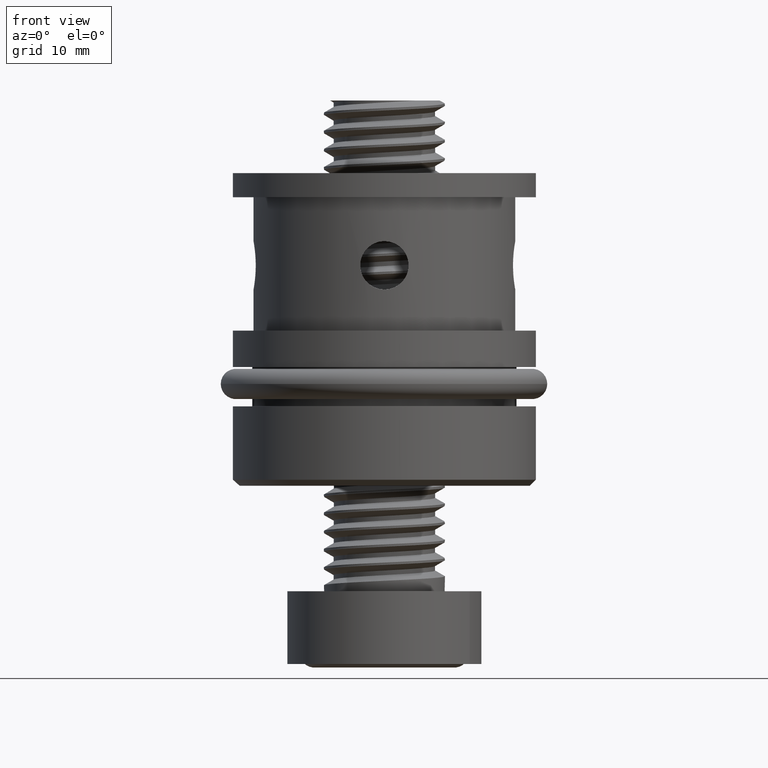
[diagram: clean part render]
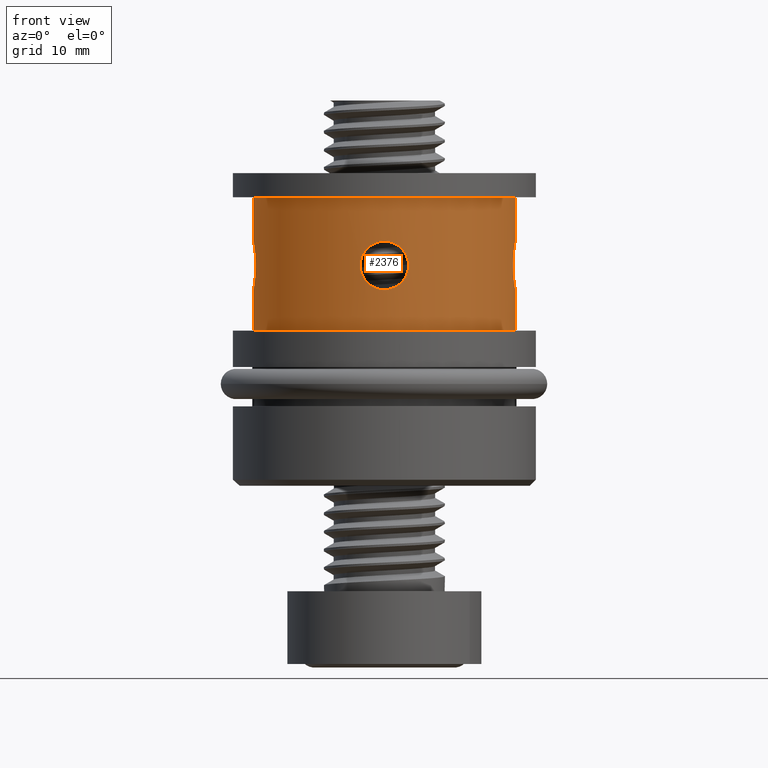
[diagram: same view with one face highlighted and labeled with its STEP entity id]
A machine part, front view. The second image highlights one B-rep face of the part: STEP entity #2376.
In plain terms, the highlighted cylindrical surface (bore or boss wall) has radius 10.8 mm, axis along (-0, -0, -1).
Its self-contained STEP definition (entity closure, byte-faithful):
#3 = CARTESIAN_POINT ( 'NONE',  ( -1.589598264491419943, -10.68262882605799291, 16.95927905251456380 ) ) ;
#10 = CARTESIAN_POINT ( 'NONE',  ( -10.66005000428028993, 1.734564839965093475, 17.17587496293500848 ) ) ;
#34 = VERTEX_POINT ( 'NONE', #5374 ) ;
#36 = CARTESIAN_POINT ( 'NONE',  ( -1.999800858941863213, -10.61323685618143386, 17.91428464412832255 ) ) ;
#49 = EDGE_CURVE ( 'NONE', #1117, #1117, #2705, .T. ) ;
#68 = CARTESIAN_POINT ( 'NONE',  ( -1.797746937189588223, -10.64944541873104100, 19.06612907610264784 ) ) ;
#133 = CARTESIAN_POINT ( 'NONE',  ( 1.747347022977987274, -10.65819150590202113, 19.18727070620046149 ) ) ;
#152 = CARTESIAN_POINT ( 'NONE',  ( -10.80000000000000071, 1.219727444046192488E-16, 20.17999999999999261 ) ) ;
#194 = CARTESIAN_POINT ( 'NONE',  ( -2.000076272813782641, 10.61318495594069056, 18.05042741847904253 ) ) ;
#197 = VERTEX_POINT ( 'NONE', #3669 ) ;
#215 = CARTESIAN_POINT ( 'NONE',  ( -10.78830205597930103, -0.5185978336214221995, 20.11599831442861941 ) ) ;
#224 = CARTESIAN_POINT ( 'NONE',  ( -1.935878953489700294, 10.62511406820406634, 17.66086318466737737 ) ) ;
#239 = ORIENTED_EDGE ( 'NONE', *, *, #2530, .T. ) ;
#246 = CARTESIAN_POINT ( 'NONE',  ( -10.76415098396516257, -0.8875499496336692884, 16.38294959545195084 ) ) ;
#255 = CARTESIAN_POINT ( 'NONE',  ( -1.999846424187794236, 10.61322826966316590, 18.44266115716260401 ) ) ;
#296 = CARTESIAN_POINT ( 'NONE',  ( 10.64946664383411346, -1.797625381050093285, 19.06643332542306979 ) ) ;
#310 = CARTESIAN_POINT ( 'NONE',  ( -0.6457459867269909060, 10.78135907199638766, 16.28259461627015625 ) ) ;
#332 = EDGE_LOOP ( 'NONE', ( #489 ) ) ;
#342 = FACE_OUTER_BOUND ( 'NONE', #4947, .T. ) ;
#373 = DIRECTION ( 'NONE',  ( -1.000000000000000000, 0.0000000000000000000, 0.0000000000000000000 ) ) ;
#389 = CARTESIAN_POINT ( 'NONE',  ( 10.80000000000000071, 1.219727444046192488E-16, 16.17999999999999261 ) ) ;
#420 = CARTESIAN_POINT ( 'NONE',  ( 10.68238903417437413, 1.591214673877152874, 16.96133060017529104 ) ) ;
#452 = CARTESIAN_POINT ( 'NONE',  ( 10.66005000428028993, 1.734564839965093475, 19.18412503706496963 ) ) ;
#479 = CARTESIAN_POINT ( 'NONE',  ( 0.8875499496336682892, -10.76415098396516434, 16.38294959545195795 ) ) ;
#489 = ORIENTED_EDGE ( 'NONE', *, *, #4073, .T. ) ;
#510 = CARTESIAN_POINT ( 'NONE',  ( -1.947469603804373506, -10.62345735533934921, 17.65431158467173134 ) ) ;
#518 = CARTESIAN_POINT ( 'NONE',  ( -10.69499868222685990, 1.505212175646270634, 16.85662155793979622 ) ) ;
#545 = CARTESIAN_POINT ( 'NONE',  ( -1.736424358206651197, -10.65974812385533887, 19.18097437162881036 ) ) ;
#553 = CARTESIAN_POINT ( 'NONE',  ( -10.64944541873103745, 1.797746937189589556, 19.06612907610264429 ) ) ;
#578 = CARTESIAN_POINT ( 'NONE',  ( 2.000076272813783973, -10.61318495594069233, 18.05042741847904608 ) ) ;
#597 = EDGE_CURVE ( 'NONE', #34, #34, #5169, .T. ) ;
#627 = CARTESIAN_POINT ( 'NONE',  ( -10.61318495594068878, -2.000076272813786193, 18.05042741847904253 ) ) ;
#643 = CARTESIAN_POINT ( 'NONE',  ( 1.355252715606880543E-17, -10.80000000000000426, 20.17999999999999616 ) ) ;
#659 = CARTESIAN_POINT ( 'NONE',  ( -10.64946664383411346, -1.797625381050093285, 17.29356667457691188 ) ) ;
#684 = CARTESIAN_POINT ( 'NONE',  ( 10.75372372631463058, -1.004613211255555250, 19.91427001587771173 ) ) ;
#690 = CARTESIAN_POINT ( 'NONE',  ( -10.62352939510842909, -1.947021054446781640, 18.70623655120161999 ) ) ;
#716 = CARTESIAN_POINT ( 'NONE',  ( 10.75395554293048406, 1.002218578439326269, 19.91572323043770254 ) ) ;
#721 = CARTESIAN_POINT ( 'NONE',  ( -10.68267020654017863, -1.598441504359452203, 19.40993401976869848 ) ) ;
#744 = CARTESIAN_POINT ( 'NONE',  ( 10.68248769205196425, -1.590537940317018117, 19.39947530450871582 ) ) ;
#759 = CARTESIAN_POINT ( 'NONE',  ( -1.002603679390976499, 10.75391577962356493, 19.91546654801592098 ) ) ;
#787 = CARTESIAN_POINT ( 'NONE',  ( -1.747347022977988606, 10.65819150590202469, 19.18727070620046149 ) ) ;
#801 = CARTESIAN_POINT ( 'NONE',  ( 10.65974812385533532, 1.736424358206652974, 17.17902562837117841 ) ) ;
#832 = CARTESIAN_POINT ( 'NONE',  ( 10.62345735533935454, 1.947469603804376614, 18.70568841532826454 ) ) ;
#850 = CARTESIAN_POINT ( 'NONE',  ( 1.507179599541713877, 10.69471842031598463, 19.50110749759831563 ) ) ;
#864 = CARTESIAN_POINT ( 'NONE',  ( 10.64971775269037657, 1.796143868860575310, 19.06944575118032148 ) ) ;
#881 = CARTESIAN_POINT ( 'NONE',  ( 1.231491522672951922, 10.73116015955719504, 19.77721322669376391 ) ) ;
#897 = CARTESIAN_POINT ( 'NONE',  ( 10.61562815664181691, 1.987235619614812210, 17.91932436437407716 ) ) ;
#915 = FACE_BOUND ( 'NONE', #332, .T. ) ;
#944 = AXIS2_PLACEMENT_3D ( 'NONE', #5265, #4735, #373 ) ;
#957 = CARTESIAN_POINT ( 'NONE',  ( 1.219790793298825893, -10.73145046830802229, 19.77033603297983788 ) ) ;
#985 = CARTESIAN_POINT ( 'NONE',  ( -1.796143868860571757, -10.64971775269037302, 17.29055424881967085 ) ) ;
#1019 = CARTESIAN_POINT ( 'NONE',  ( 1.355252715606880543E-17, -10.80000000000000426, 20.17999999999999616 ) ) ;
#1026 = CARTESIAN_POINT ( 'NONE',  ( -10.69471842031598463, 1.507179599541714765, 19.50110749759832274 ) ) ;
#1053 = CARTESIAN_POINT ( 'NONE',  ( -1.008904288144430339, -10.75547539496108129, 19.92641734741187776 ) ) ;
#1060 = CARTESIAN_POINT ( 'NONE',  ( -10.73141212968002023, 1.220162120888325763, 16.58991144573662524 ) ) ;
#1086 = CARTESIAN_POINT ( 'NONE',  ( -0.1324355693000434653, -10.80000000000000959, 20.17999999999999616 ) ) ;
#1096 = ORIENTED_EDGE ( 'NONE', *, *, #2332, .T. ) ;
#1103 = CARTESIAN_POINT ( 'NONE',  ( -10.78135907199638588, -0.6457459867269924603, 16.28259461627015270 ) ) ;
#1117 = VERTEX_POINT ( 'NONE', #4367 ) ;
#1147 = CARTESIAN_POINT ( 'NONE',  ( 0.0000000000000000000, 0.0000000000000000000, 23.79999999999999716 ) ) ;
#1167 = CARTESIAN_POINT ( 'NONE',  ( -10.75391577962356848, -1.002603679390976499, 19.91546654801593164 ) ) ;
#1190 = CARTESIAN_POINT ( 'NONE',  ( 10.63202895569500583, -1.898040329917645153, 18.82394406358178074 ) ) ;
#1205 = CARTESIAN_POINT ( 'NONE',  ( 1.999800858941863657, 10.61323685618145163, 17.91428464412833677 ) ) ;
#1221 = EDGE_LOOP ( 'NONE', ( #239 ) ) ;
#1234 = CARTESIAN_POINT ( 'NONE',  ( -1.220911044758802078, 10.73131855397636869, 16.59056097537915520 ) ) ;
#1249 = CARTESIAN_POINT ( 'NONE',  ( 10.80000000000000071, 1.219727444046192488E-16, 16.17999999999999261 ) ) ;
#1400 = CARTESIAN_POINT ( 'NONE',  ( 10.69471842031598463, 1.507179599541714765, 16.85889250240166959 ) ) ;
#1426 = CARTESIAN_POINT ( 'NONE',  ( 1.220911044758802300, -10.73131855397636691, 16.59056097537915875 ) ) ;
#1458 = CARTESIAN_POINT ( 'NONE',  ( -0.2605371677251699936, -10.80001927726813804, 16.17989590274407163 ) ) ;
#1463 = CARTESIAN_POINT ( 'NONE',  ( -10.61318072528518108, 2.000098723224239983, 18.31060294330307769 ) ) ;
#1488 = CARTESIAN_POINT ( 'NONE',  ( -1.505212175646267081, -10.69499868222685990, 16.85662155793978201 ) ) ;
#1522 = CARTESIAN_POINT ( 'NONE',  ( -1.591214673877152208, -10.68238903417436880, 19.39866939982469773 ) ) ;
#1552 = VERTEX_POINT ( 'NONE', #5409 ) ;
#1554 = CARTESIAN_POINT ( 'NONE',  ( 1.935878953489701182, -10.62511406820406279, 17.66086318466737737 ) ) ;
#1592 = CARTESIAN_POINT ( 'NONE',  ( -10.79999031715724556, -0.1314653969383476062, 16.18005228735487933 ) ) ;
#1595 = CARTESIAN_POINT ( 'NONE',  ( 10.79999031715724556, -0.1314653969383476062, 20.17994771264510590 ) ) ;
#1625 = B_SPLINE_CURVE_WITH_KNOTS ( 'NONE', 3,
 ( #152, #3568, #5490, #215, #4953, #5013, #1167, #3507, #2177, #721, #6019, #690, #1700, #627, #2083, #2147, #5426, #659, #3540, #5518, #3596, #4072, #5990, #4579, #246, #1103, #5455, #3064, #1592, #5890, #5786, #2009, #4911, #1060, #4377, #518, #3933, #10, #3430, #2924, #2420, #1463, #5386, #1976, #3899, #553, #3397, #3463, #1026, #5349, #2955, #2989, #4846, #5919, #4880, #5818 ),
 .UNSPECIFIED., .T., .F.,
 ( 4, 2, 2, 2, 2, 2, 2, 2, 2, 2, 2, 2, 2, 2, 2, 2, 2, 2, 2, 2, 2, 2, 2, 2, 2, 2, 2, 4 ),
 ( 0.0000000000000000000, 0.0003916033512440273237, 0.0007832067024880546473, 0.001174810053732082242, 0.001566413404976109945, 0.002349620107464172290, 0.003132826809952234635, 0.003524430161196265808, 0.003916033512440296981, 0.004307636863684329021, 0.004699240214928360193, 0.005090843566172392233, 0.005482446917416423406, 0.005874050268660455446, 0.006265653619904485751, 0.007048860322392548963, 0.007440463673636581003, 0.007832067024880611308, 0.008223670376124642481, 0.008615273727368675388, 0.009398480429856727325, 0.009790083781100760232, 0.01018168713234479140, 0.01057329048358882258, 0.01096489383483285375, 0.01174810053732091956, 0.01213970388856494900, 0.01253130723980898018 ),
 .UNSPECIFIED. ) ;
#1630 = CARTESIAN_POINT ( 'NONE',  ( 10.61318495594068878, -2.000076272813786193, 18.30957258152094269 ) ) ;
#1647 = CARTESIAN_POINT ( 'NONE',  ( -0.8878409822580523025, 10.76412846501430565, 19.97691732339053061 ) ) ;
#1663 = CARTESIAN_POINT ( 'NONE',  ( 10.80000000000000071, -0.1324355693000444090, 16.17999999999998906 ) ) ;
#1678 = CARTESIAN_POINT ( 'NONE',  ( 1.589598264491423718, 10.68262882605799824, 16.95927905251457446 ) ) ;
#1700 = CARTESIAN_POINT ( 'NONE',  ( -10.61322826966315347, -1.999846424187795568, 18.44266115716260046 ) ) ;
#1710 = CARTESIAN_POINT ( 'NONE',  ( -1.219790793298826337, 10.73145046830802407, 19.77033603297984143 ) ) ;
#1738 = CARTESIAN_POINT ( 'NONE',  ( 2.000098723224239095, 10.61318072528519174, 18.31060294330308125 ) ) ;
#1938 = CARTESIAN_POINT ( 'NONE',  ( -1.734564839965090366, -10.66005000428029170, 17.17587496293501559 ) ) ;
#1969 = CARTESIAN_POINT ( 'NONE',  ( -1.987235619614809989, -10.61562815664182402, 18.44067563562591161 ) ) ;
#1976 = CARTESIAN_POINT ( 'NONE',  ( -10.62500795775757290, 1.936458743567937457, 18.69689914812672527 ) ) ;
#2009 = CARTESIAN_POINT ( 'NONE',  ( -10.76431512493481968, 0.8854888938505736107, 16.38197546863550258 ) ) ;
#2028 = ORIENTED_EDGE ( 'NONE', *, *, #5682, .T. ) ;
#2033 = VERTEX_POINT ( 'NONE', #5879 ) ;
#2083 = CARTESIAN_POINT ( 'NONE',  ( -10.61566805033415761, -1.987024944490343614, 17.91758386945305759 ) ) ;
#2126 = CARTESIAN_POINT ( 'NONE',  ( -1.797625381050091509, 10.64946664383412234, 17.29356667457691898 ) ) ;
#2140 = CARTESIAN_POINT ( 'NONE',  ( 10.68267020654017863, -1.598441504359452203, 16.95006598023130095 ) ) ;
#2147 = CARTESIAN_POINT ( 'NONE',  ( -10.62511406820406279, -1.935878953489702958, 17.66086318466737737 ) ) ;
#2157 = CARTESIAN_POINT ( 'NONE',  ( -0.1314653969383464127, 10.79999031715724556, 16.18005228735488998 ) ) ;
#2164 = AXIS2_PLACEMENT_3D ( 'NONE', #2748, #2280, #5646 ) ;
#2177 = CARTESIAN_POINT ( 'NONE',  ( -10.71913621884080570, -1.322396770290700463, 19.68605611312645465 ) ) ;
#2216 = CARTESIAN_POINT ( 'NONE',  ( -0.6457748771110448649, 10.78135882109487653, 20.07740567221934214 ) ) ;
#2230 = CARTESIAN_POINT ( 'NONE',  ( 10.65995543376543608, -1.735138144518939773, 19.18310845741122250 ) ) ;
#2245 = CARTESIAN_POINT ( 'NONE',  ( 1.797746937189588445, 10.64944541873103923, 19.06612907610264074 ) ) ;
#2280 = DIRECTION ( 'NONE',  ( 0.0000000000000000000, 0.0000000000000000000, 1.000000000000000000 ) ) ;
#2293 = CARTESIAN_POINT ( 'NONE',  ( 10.78817841479602180, 0.5214409400693525987, 16.24468641376401834 ) ) ;
#2309 = FACE_BOUND ( 'NONE', #3652, .T. ) ;
#2332 = EDGE_CURVE ( 'NONE', #2033, #2033, #3611, .T. ) ;
#2376 = ADVANCED_FACE ( 'NONE', ( #3816, #3755, #915, #2309, #342, #4269 ), #4239, .T. ) ;
#2411 = CARTESIAN_POINT ( 'NONE',  ( -0.8854888938505728335, -10.76431512493482501, 16.38197546863550613 ) ) ;
#2420 = CARTESIAN_POINT ( 'NONE',  ( -10.61323685618144452, 1.999800858941867210, 17.91428464412832966 ) ) ;
#2442 = CARTESIAN_POINT ( 'NONE',  ( 1.590537940317015453, -10.68248769205196425, 16.96052469549126585 ) ) ;
#2506 = CARTESIAN_POINT ( 'NONE',  ( 1.004613211255551475, -10.75372372631463058, 16.44572998412228415 ) ) ;
#2530 = EDGE_CURVE ( 'NONE', #1552, #1552, #4078, .T. ) ;
#2539 = CARTESIAN_POINT ( 'NONE',  ( 0.6457748771110466413, -10.78135882109488364, 20.07740567221934569 ) ) ;
#2583 = CARTESIAN_POINT ( 'NONE',  ( 10.73145046830802585, -1.219790793298825671, 16.58966396702014734 ) ) ;
#2615 = CARTESIAN_POINT ( 'NONE',  ( 10.78818757133254636, -0.5210847650443407586, 20.11536317073676727 ) ) ;
#2631 = CARTESIAN_POINT ( 'NONE',  ( -0.1324355693000445477, 10.80000000000000249, 20.17999999999999616 ) ) ;
#2643 = CARTESIAN_POINT ( 'NONE',  ( 10.80001927726813449, 0.2605371677251703821, 20.18010409725592069 ) ) ;
#2658 = CARTESIAN_POINT ( 'NONE',  ( -6.776263578034402713E-17, 10.80000000000000426, 20.17999999999999616 ) ) ;
#2660 = DIRECTION ( 'NONE',  ( 1.000000000000000000, 0.0000000000000000000, 0.0000000000000000000 ) ) ;
#2674 = CARTESIAN_POINT ( 'NONE',  ( 10.73131855397637047, -1.220911044758804742, 19.76943902462083003 ) ) ;
#2688 = CARTESIAN_POINT ( 'NONE',  ( 1.320688226207201499, 10.71934900615264397, 16.67242684960856991 ) ) ;
#2691 = VERTEX_POINT ( 'NONE', #5530 ) ;
#2702 = CARTESIAN_POINT ( 'NONE',  ( 10.61322826966315347, -1.999846424187795568, 17.91733884283738831 ) ) ;
#2705 = B_SPLINE_CURVE_WITH_KNOTS ( 'NONE', 3,
 ( #1249, #1663, #5543, #5571, #3149, #4033, #5007, #2583, #3562, #2140, #3178, #3590, #2702, #1630, #5512, #5037, #1190, #296, #2230, #744, #4158, #4511, #2674, #684, #5953, #3090, #2615, #4601, #1595, #2643, #4543, #3120, #716, #4573, #5186, #5720, #4782, #452, #864, #832, #2793, #5218, #897, #6073, #3204, #6167, #801, #420, #1400, #3329, #3297, #5600, #2293, #4253, #5629, #389 ),
 .UNSPECIFIED., .T., .F.,
 ( 4, 2, 2, 2, 2, 2, 2, 2, 2, 2, 2, 2, 2, 2, 2, 2, 2, 2, 2, 2, 2, 2, 2, 2, 2, 2, 2, 4 ),
 ( 0.0000000000000000000, 0.0003916033512440273237, 0.0007832067024880546473, 0.001174810053732082242, 0.001566413404976109945, 0.002349620107464172290, 0.003132826809952234635, 0.003524430161196265808, 0.003916033512440296981, 0.004307636863684329021, 0.004699240214928360193, 0.005090843566172392233, 0.005482446917416423406, 0.005874050268660455446, 0.006265653619904485751, 0.007048860322392548963, 0.007440463673636581003, 0.007832067024880611308, 0.008223670376124642481, 0.008615273727368675388, 0.009398480429856727325, 0.009790083781100760232, 0.01018168713234479140, 0.01057329048358882258, 0.01096489383483285375, 0.01174810053732091956, 0.01213970388856494900, 0.01253130723980898018 ),
 .UNSPECIFIED. ) ;
#2737 = B_SPLINE_CURVE_WITH_KNOTS ( 'NONE', 3,
 ( #1019, #3829, #4937, #3958, #2539, #5811, #4466, #957, #4337, #3892, #133, #2916, #3357, #578, #2981, #1554, #2883, #4433, #4839, #2442, #5749, #5779, #1426, #2506, #479, #2948, #5847, #3925, #5309, #1458, #4873, #2411, #4369, #3391, #5279, #1488, #3, #1938, #985, #510, #36, #4402, #1969, #3421, #5341, #68, #545, #1522, #3455, #5376, #1053, #4904, #3489, #5411, #1086, #643 ),
 .UNSPECIFIED., .T., .F.,
 ( 4, 2, 2, 2, 2, 2, 2, 2, 2, 2, 2, 2, 2, 2, 2, 2, 2, 2, 2, 2, 2, 2, 2, 2, 2, 2, 2, 4 ),
 ( 0.0000000000000000000, 0.0003916033512440310099, 0.0007832067024880620199, 0.001174810053732093084, 0.001566413404976124040, 0.002349620107464187035, 0.003132826809952249381, 0.003524430161196280553, 0.003916033512440311726, 0.004307636863684343766, 0.004699240214928375806, 0.005090843566172406978, 0.005482446917416439018, 0.005874050268660470191, 0.006265653619904501363, 0.007048860322392564576, 0.007440463673636594881, 0.007832067024880625186, 0.008223670376124658093, 0.008615273727368687531, 0.009398480429856739468, 0.009790083781100770641, 0.01018168713234480181, 0.01057329048358883299, 0.01096489383483286416, 0.01174810053732091956, 0.01213970388856495074, 0.01253130723980897844 ),
 .UNSPECIFIED. ) ;
#2748 = CARTESIAN_POINT ( 'NONE',  ( 0.0000000000000000000, 0.0000000000000000000, 12.79999999999999893 ) ) ;
#2779 = CARTESIAN_POINT ( 'NONE',  ( 0.2631997020801399856, 10.79756547006204492, 20.16697389209694791 ) ) ;
#2793 = CARTESIAN_POINT ( 'NONE',  ( 10.61323685618144452, 1.999800858941867210, 18.44571535587166267 ) ) ;
#2809 = CARTESIAN_POINT ( 'NONE',  ( 0.6481409237933941636, 10.78120809795760593, 20.07654388201236628 ) ) ;
#2883 = CARTESIAN_POINT ( 'NONE',  ( 1.898040329917644042, -10.63202895569500228, 17.53605593641820448 ) ) ;
#2916 = CARTESIAN_POINT ( 'NONE',  ( 1.947021054446779420, -10.62352939510842909, 18.70623655120161644 ) ) ;
#2924 = CARTESIAN_POINT ( 'NONE',  ( -10.62345735533935454, 1.947469603804376614, 17.65431158467173844 ) ) ;
#2927 = ORIENTED_EDGE ( 'NONE', *, *, #597, .F. ) ;
#2948 = CARTESIAN_POINT ( 'NONE',  ( 0.6457459867269915721, -10.78135907199638943, 16.28259461627015625 ) ) ;
#2955 = CARTESIAN_POINT ( 'NONE',  ( -10.75547539496109017, 1.008904288144435224, 19.92641734741187065 ) ) ;
#2981 = CARTESIAN_POINT ( 'NONE',  ( 1.987024944490341838, -10.61566805033416117, 17.91758386945305759 ) ) ;
#2989 = CARTESIAN_POINT ( 'NONE',  ( -10.78120809795760415, 0.6481409237933928313, 20.07654388201238405 ) ) ;
#3065 = AXIS2_PLACEMENT_3D ( 'NONE', #1147, #3076, #2660 ) ;
#3064 = CARTESIAN_POINT ( 'NONE',  ( -10.79753320891846791, -0.2641912355059725659, 16.19320284727217540 ) ) ;
#3076 = DIRECTION ( 'NONE',  ( 0.0000000000000000000, 0.0000000000000000000, 1.000000000000000000 ) ) ;
#3090 = CARTESIAN_POINT ( 'NONE',  ( 10.78135907199638588, -0.6457459867269924603, 20.07740538372983607 ) ) ;
#3120 = CARTESIAN_POINT ( 'NONE',  ( 10.76431512493481968, 0.8854888938505736107, 19.97802453136447909 ) ) ;
#3135 = CARTESIAN_POINT ( 'NONE',  ( 1.987235619614809989, 10.61562815664182224, 18.44067563562592227 ) ) ;
#3149 = CARTESIAN_POINT ( 'NONE',  ( 10.78135882109487653, -0.6457748771110469743, 16.28259432778064308 ) ) ;
#3164 = CARTESIAN_POINT ( 'NONE',  ( -1.004613211255551475, 10.75372372631463236, 16.44572998412228770 ) ) ;
#3178 = CARTESIAN_POINT ( 'NONE',  ( 10.65819150590202113, -1.747347022977990827, 17.17272929379953439 ) ) ;
#3191 = CARTESIAN_POINT ( 'NONE',  ( -1.507574381213913295, 10.69467244626118152, 16.85919532389424802 ) ) ;
#3204 = CARTESIAN_POINT ( 'NONE',  ( 10.63205849958241878, 1.897870869728298882, 17.53563601006429451 ) ) ;
#3282 = CARTESIAN_POINT ( 'NONE',  ( 1.008904288144430339, 10.75547539496108662, 19.92641734741186710 ) ) ;
#3297 = CARTESIAN_POINT ( 'NONE',  ( 10.75547539496109017, 1.008904288144435224, 16.43358265258810746 ) ) ;
#3329 = CARTESIAN_POINT ( 'NONE',  ( 10.73116015955719327, 1.231491522672953476, 16.58278677330623196 ) ) ;
#3357 = CARTESIAN_POINT ( 'NONE',  ( 1.999846424187792904, -10.61322826966316235, 18.44266115716260401 ) ) ;
#3391 = CARTESIAN_POINT ( 'NONE',  ( -1.220162120888326651, -10.73141212968002201, 16.58991144573662524 ) ) ;
#3397 = CARTESIAN_POINT ( 'NONE',  ( -10.65974812385533532, 1.736424358206652974, 19.18097437162880681 ) ) ;
#3421 = CARTESIAN_POINT ( 'NONE',  ( -1.936458743567935903, -10.62500795775757823, 18.69689914812672171 ) ) ;
#3430 = CARTESIAN_POINT ( 'NONE',  ( -10.64971775269037657, 1.796143868860575310, 17.29055424881967795 ) ) ;
#3455 = CARTESIAN_POINT ( 'NONE',  ( -1.507179599541713211, -10.69471842031598285, 19.50110749759831563 ) ) ;
#3463 = CARTESIAN_POINT ( 'NONE',  ( -10.68238903417437413, 1.591214673877152874, 19.39866939982470839 ) ) ;
#3489 = CARTESIAN_POINT ( 'NONE',  ( -0.5214409400693545971, -10.78817841479602357, 20.11531358623596688 ) ) ;
#3507 = CARTESIAN_POINT ( 'NONE',  ( -10.73145046830802585, -1.219790793298825671, 19.77033603297984143 ) ) ;
#3540 = CARTESIAN_POINT ( 'NONE',  ( -10.65995543376543608, -1.735138144518939773, 17.17689154258876982 ) ) ;
#3562 = CARTESIAN_POINT ( 'NONE',  ( 10.71913621884080570, -1.322396770290700463, 16.67394388687354834 ) ) ;
#3568 = CARTESIAN_POINT ( 'NONE',  ( -10.80000000000000071, -0.1324355693000444090, 20.17999999999999261 ) ) ;
#3579 = CARTESIAN_POINT ( 'NONE',  ( -1.987024944490341394, 10.61566805033415761, 17.91758386945306825 ) ) ;
#3590 = CARTESIAN_POINT ( 'NONE',  ( 10.62352939510842909, -1.947021054446781640, 17.65376344879837234 ) ) ;
#3596 = CARTESIAN_POINT ( 'NONE',  ( -10.69467244626117619, -1.507574381213915071, 16.85919532389424447 ) ) ;
#3604 = CARTESIAN_POINT ( 'NONE',  ( -1.735138144518936887, 10.65995543376543608, 17.17689154258877693 ) ) ;
#3611 = B_SPLINE_CURVE_WITH_KNOTS ( 'NONE', 3,
 ( #2658, #2631, #4588, #6027, #2216, #1647, #759, #1710, #4527, #3698, #787, #5140, #255, #194, #3579, #224, #4110, #2126, #3604, #4052, #3191, #5557, #1234, #3164, #4641, #310, #4141, #6092, #2157, #5500, #5109, #4082, #5082, #6058, #2688, #5999, #1678, #4616, #5527, #5052, #1205, #1738, #3135, #3666, #5586, #2245, #5615, #5708, #850, #881, #3282, #2809, #5235, #2779, #5765, #5203 ),
 .UNSPECIFIED., .T., .F.,
 ( 4, 2, 2, 2, 2, 2, 2, 2, 2, 2, 2, 2, 2, 2, 2, 2, 2, 2, 2, 2, 2, 2, 2, 2, 2, 2, 2, 4 ),
 ( 0.0000000000000000000, 0.0003916033512440278658, 0.0007832067024880557315, 0.001174810053732083543, 0.001566413404976111463, 0.002349620107464167953, 0.003132826809952224227, 0.003524430161196251930, 0.003916033512440280501, 0.004307636863684309071, 0.004699240214928337642, 0.005090843566172366212, 0.005482446917416394783, 0.005874050268660423353, 0.006265653619904451056, 0.007048860322392508197, 0.007440463673636535900, 0.007832067024880564471, 0.008223670376124592174, 0.008615273727368619877, 0.009398480429856685692, 0.009790083781100722068, 0.01018168713234476018, 0.01057329048358880003, 0.01096489383483283814, 0.01174810053732090742, 0.01213970388856494380, 0.01253130723980898018 ),
 .UNSPECIFIED. ) ;
#3652 = EDGE_LOOP ( 'NONE', ( #4096 ) ) ;
#3666 = CARTESIAN_POINT ( 'NONE',  ( 1.936458743567936125, 10.62500795775757645, 18.69689914812671816 ) ) ;
#3669 = CARTESIAN_POINT ( 'NONE',  ( -10.80000000000000071, 0.0000000000000000000, 20.17999999999999616 ) ) ;
#3698 = CARTESIAN_POINT ( 'NONE',  ( -1.598441504359452425, 10.68267020654018218, 19.40993401976869137 ) ) ;
#3755 = FACE_BOUND ( 'NONE', #4883, .T. ) ;
#3816 = FACE_BOUND ( 'NONE', #5756, .T. ) ;
#3829 = CARTESIAN_POINT ( 'NONE',  ( 0.1324355693000444090, -10.80000000000000071, 20.17999999999999261 ) ) ;
#3892 = CARTESIAN_POINT ( 'NONE',  ( 1.598441504359451759, -10.68267020654018218, 19.40993401976868427 ) ) ;
#3899 = CARTESIAN_POINT ( 'NONE',  ( -10.63205849958241878, 1.897870869728298882, 18.82436398993569782 ) ) ;
#3925 = CARTESIAN_POINT ( 'NONE',  ( 0.2641912355059722328, -10.79753320891846258, 16.19320284727216475 ) ) ;
#3933 = CARTESIAN_POINT ( 'NONE',  ( -10.68262882605799469, 1.589598264491423718, 16.95927905251456025 ) ) ;
#3958 = CARTESIAN_POINT ( 'NONE',  ( 0.5185978336214220885, -10.78830205597930458, 20.11599831442861941 ) ) ;
#4033 = CARTESIAN_POINT ( 'NONE',  ( 10.76412846501430565, -0.8878409822580544120, 16.38308267660946171 ) ) ;
#4052 = CARTESIAN_POINT ( 'NONE',  ( -1.590537940317015897, 10.68248769205196957, 16.96052469549126940 ) ) ;
#4072 = CARTESIAN_POINT ( 'NONE',  ( -10.71924532121455620, -1.321582003256126070, 16.67310699915858407 ) ) ;
#4073 = EDGE_CURVE ( 'NONE', #197, #197, #1625, .T. ) ;
#4078 = CIRCLE ( 'NONE', #2164, 10.80000000000000071 ) ;
#4082 = CARTESIAN_POINT ( 'NONE',  ( 0.8854888938505748319, 10.76431512493482145, 16.38197546863550258 ) ) ;
#4096 = ORIENTED_EDGE ( 'NONE', *, *, #49, .T. ) ;
#4110 = CARTESIAN_POINT ( 'NONE',  ( -1.898040329917643376, 10.63202895569500228, 17.53605593641820803 ) ) ;
#4141 = CARTESIAN_POINT ( 'NONE',  ( -0.5210847650443393153, 10.78818757133254103, 16.24463682926323571 ) ) ;
#4158 = CARTESIAN_POINT ( 'NONE',  ( 10.69467244626117619, -1.507574381213915071, 19.50080467610575852 ) ) ;
#4239 = CYLINDRICAL_SURFACE ( 'NONE', #944, 10.80000000000000071 ) ;
#4253 = CARTESIAN_POINT ( 'NONE',  ( 10.79756547006203959, 0.2631997020801401521, 16.19302610790304087 ) ) ;
#4269 = FACE_OUTER_BOUND ( 'NONE', #1221, .T. ) ;
#4337 = CARTESIAN_POINT ( 'NONE',  ( 1.322396770290700685, -10.71913621884080392, 19.68605611312645109 ) ) ;
#4367 = CARTESIAN_POINT ( 'NONE',  ( 10.80000000000000071, 0.0000000000000000000, 16.17999999999999261 ) ) ;
#4369 = CARTESIAN_POINT ( 'NONE',  ( -1.002218578439327157, -10.75395554293048406, 16.44427676956228979 ) ) ;
#4377 = CARTESIAN_POINT ( 'NONE',  ( -10.71934900615264219, 1.320688226207200833, 16.67242684960855570 ) ) ;
#4402 = CARTESIAN_POINT ( 'NONE',  ( -2.000098723224238650, -10.61318072528518286, 18.31060294330307769 ) ) ;
#4433 = CARTESIAN_POINT ( 'NONE',  ( 1.797625381050089954, -10.64946664383411701, 17.29356667457691188 ) ) ;
#4466 = CARTESIAN_POINT ( 'NONE',  ( 1.002603679390976277, -10.75391577962356671, 19.91546654801592098 ) ) ;
#4511 = CARTESIAN_POINT ( 'NONE',  ( 10.71924532121455620, -1.321582003256126070, 19.68689300084142246 ) ) ;
#4527 = CARTESIAN_POINT ( 'NONE',  ( -1.322396770290700241, 10.71913621884080392, 19.68605611312645109 ) ) ;
#4543 = CARTESIAN_POINT ( 'NONE',  ( 10.78996859613143400, 0.5242713559122497147, 20.12758073810934789 ) ) ;
#4573 = CARTESIAN_POINT ( 'NONE',  ( 10.73141212968002023, 1.220162120888325763, 19.77008855426335643 ) ) ;
#4579 = CARTESIAN_POINT ( 'NONE',  ( -10.75372372631463058, -1.004613211255555250, 16.44572998412228415 ) ) ;
#4588 = CARTESIAN_POINT ( 'NONE',  ( -0.2626016933273859211, 10.79756663858786858, 20.16697597800498443 ) ) ;
#4601 = CARTESIAN_POINT ( 'NONE',  ( 10.79753320891846791, -0.2641912355059725659, 20.16679715272782403 ) ) ;
#4616 = CARTESIAN_POINT ( 'NONE',  ( 1.734564839965092586, 10.66005000428028815, 17.17587496293501559 ) ) ;
#4641 = CARTESIAN_POINT ( 'NONE',  ( -0.8875499496336678451, 10.76415098396515901, 16.38294959545195795 ) ) ;
#4735 = DIRECTION ( 'NONE',  ( -0.0000000000000000000, -0.0000000000000000000, -1.000000000000000000 ) ) ;
#4782 = CARTESIAN_POINT ( 'NONE',  ( 10.68262882605799469, 1.589598264491423718, 19.40072094748542497 ) ) ;
#4839 = CARTESIAN_POINT ( 'NONE',  ( 1.735138144518936887, -10.65995543376543075, 17.17689154258876627 ) ) ;
#4846 = CARTESIAN_POINT ( 'NONE',  ( -10.78817841479602180, 0.5214409400693525987, 20.11531358623597399 ) ) ;
#4873 = CARTESIAN_POINT ( 'NONE',  ( -0.5242713559122491596, -10.78996859613144643, 16.23241926189063733 ) ) ;
#4880 = CARTESIAN_POINT ( 'NONE',  ( -10.80000000000000249, 0.1324355693000460743, 20.17999999999999261 ) ) ;
#4883 = EDGE_LOOP ( 'NONE', ( #1096 ) ) ;
#4904 = CARTESIAN_POINT ( 'NONE',  ( -0.6481409237933939416, -10.78120809795760415, 20.07654388201238405 ) ) ;
#4911 = CARTESIAN_POINT ( 'NONE',  ( -10.75395554293048406, 1.002218578439326269, 16.44427676956228623 ) ) ;
#4937 = CARTESIAN_POINT ( 'NONE',  ( 0.2626016933273861431, -10.79756663858787391, 20.16697597800498443 ) ) ;
#4947 = EDGE_LOOP ( 'NONE', ( #2927 ) ) ;
#4953 = CARTESIAN_POINT ( 'NONE',  ( -10.78135882109487653, -0.6457748771110469743, 20.07740567221934569 ) ) ;
#5007 = CARTESIAN_POINT ( 'NONE',  ( 10.75391577962356848, -1.002603679390976499, 16.44453345198408201 ) ) ;
#5013 = CARTESIAN_POINT ( 'NONE',  ( -10.76412846501430565, -0.8878409822580544120, 19.97691732339054127 ) ) ;
#5037 = CARTESIAN_POINT ( 'NONE',  ( 10.62511406820406279, -1.935878953489702958, 18.69913681533261851 ) ) ;
#5052 = CARTESIAN_POINT ( 'NONE',  ( 1.947469603804374838, 10.62345735533935098, 17.65431158467173489 ) ) ;
#5082 = CARTESIAN_POINT ( 'NONE',  ( 1.002218578439328711, 10.75395554293048583, 16.44427676956228623 ) ) ;
#5109 = CARTESIAN_POINT ( 'NONE',  ( 0.5242713559122518241, 10.78996859613144288, 16.23241926189065509 ) ) ;
#5140 = CARTESIAN_POINT ( 'NONE',  ( -1.947021054446778976, 10.62352939510842909, 18.70623655120161288 ) ) ;
#5169 = CIRCLE ( 'NONE', #3065, 10.80000000000000071 ) ;
#5186 = CARTESIAN_POINT ( 'NONE',  ( 10.71934900615264219, 1.320688226207200833, 19.68757315039142952 ) ) ;
#5203 = CARTESIAN_POINT ( 'NONE',  ( -6.776263578034402713E-17, 10.80000000000000426, 20.17999999999999616 ) ) ;
#5218 = CARTESIAN_POINT ( 'NONE',  ( 10.61318072528518108, 2.000098723224239983, 18.04939705669690397 ) ) ;
#5235 = CARTESIAN_POINT ( 'NONE',  ( 0.5214409400693537089, 10.78817841479602002, 20.11531358623597399 ) ) ;
#5265 = CARTESIAN_POINT ( 'NONE',  ( 0.0000000000000000000, 0.0000000000000000000, 23.79999999999999716 ) ) ;
#5279 = CARTESIAN_POINT ( 'NONE',  ( -1.320688226207198390, -10.71934900615264930, 16.67242684960856280 ) ) ;
#5309 = CARTESIAN_POINT ( 'NONE',  ( 0.1314653969383481891, -10.79999031715724556, 16.18005228735488643 ) ) ;
#5341 = CARTESIAN_POINT ( 'NONE',  ( -1.897870869728295995, -10.63205849958242766, 18.82436398993569782 ) ) ;
#5349 = CARTESIAN_POINT ( 'NONE',  ( -10.73116015955719327, 1.231491522672953476, 19.77721322669376747 ) ) ;
#5374 = CARTESIAN_POINT ( 'NONE',  ( 10.80000000000000071, 0.0000000000000000000, 23.79999999999999716 ) ) ;
#5376 = CARTESIAN_POINT ( 'NONE',  ( -1.231491522672949701, -10.73116015955719682, 19.77721322669376036 ) ) ;
#5386 = CARTESIAN_POINT ( 'NONE',  ( -10.61562815664181691, 1.987235619614812210, 18.44067563562590806 ) ) ;
#5409 = CARTESIAN_POINT ( 'NONE',  ( 10.80000000000000071, 0.0000000000000000000, 12.79999999999999893 ) ) ;
#5411 = CARTESIAN_POINT ( 'NONE',  ( -0.2631997020801400411, -10.79756547006204315, 20.16697389209694791 ) ) ;
#5426 = CARTESIAN_POINT ( 'NONE',  ( -10.63202895569500583, -1.898040329917645153, 17.53605593641820093 ) ) ;
#5455 = CARTESIAN_POINT ( 'NONE',  ( -10.78818757133254636, -0.5210847650443407586, 16.24463682926323571 ) ) ;
#5490 = CARTESIAN_POINT ( 'NONE',  ( -10.79756663858786503, -0.2626016933273859211, 20.16697597800498798 ) ) ;
#5500 = CARTESIAN_POINT ( 'NONE',  ( 0.2605371677251720475, 10.80001927726813804, 16.17989590274407519 ) ) ;
#5512 = CARTESIAN_POINT ( 'NONE',  ( 10.61566805033415761, -1.987024944490343614, 18.44241613054693119 ) ) ;
#5518 = CARTESIAN_POINT ( 'NONE',  ( -10.68248769205196425, -1.590537940317018117, 16.96052469549127295 ) ) ;
#5527 = CARTESIAN_POINT ( 'NONE',  ( 1.796143868860575088, 10.64971775269037479, 17.29055424881968506 ) ) ;
#5530 = CARTESIAN_POINT ( 'NONE',  ( 0.0000000000000000000, -10.80000000000000071, 20.17999999999999616 ) ) ;
#5543 = CARTESIAN_POINT ( 'NONE',  ( 10.79756663858786503, -0.2626016933273859211, 16.19302402199500435 ) ) ;
#5557 = CARTESIAN_POINT ( 'NONE',  ( -1.321582003256125404, 10.71924532121455442, 16.67310699915858052 ) ) ;
#5571 = CARTESIAN_POINT ( 'NONE',  ( 10.78830205597930103, -0.5185978336214221995, 16.24400168557136936 ) ) ;
#5586 = CARTESIAN_POINT ( 'NONE',  ( 1.897870869728296883, 10.63205849958242943, 18.82436398993569782 ) ) ;
#5600 = CARTESIAN_POINT ( 'NONE',  ( 10.78120809795760415, 0.6481409237933928313, 16.28345611798762249 ) ) ;
#5615 = CARTESIAN_POINT ( 'NONE',  ( 1.736424358206650309, 10.65974812385534065, 19.18097437162880681 ) ) ;
#5629 = CARTESIAN_POINT ( 'NONE',  ( 10.80000000000000249, 0.1324355693000460743, 16.17999999999999261 ) ) ;
#5646 = DIRECTION ( 'NONE',  ( 1.000000000000000000, 0.0000000000000000000, 0.0000000000000000000 ) ) ;
#5682 = EDGE_CURVE ( 'NONE', #2691, #2691, #2737, .T. ) ;
#5708 = CARTESIAN_POINT ( 'NONE',  ( 1.591214673877149544, 10.68238903417437058, 19.39866939982469418 ) ) ;
#5720 = CARTESIAN_POINT ( 'NONE',  ( 10.69499868222685990, 1.505212175646270634, 19.50337844206019966 ) ) ;
#5749 = CARTESIAN_POINT ( 'NONE',  ( 1.507574381213913295, -10.69467244626118152, 16.85919532389425157 ) ) ;
#5756 = EDGE_LOOP ( 'NONE', ( #2028 ) ) ;
#5765 = CARTESIAN_POINT ( 'NONE',  ( 0.1324355693000472400, 10.80000000000000426, 20.17999999999999616 ) ) ;
#5779 = CARTESIAN_POINT ( 'NONE',  ( 1.321582003256126070, -10.71924532121455087, 16.67310699915857697 ) ) ;
#5786 = CARTESIAN_POINT ( 'NONE',  ( -10.78996859613143400, 0.5242713559122497147, 16.23241926189066575 ) ) ;
#5811 = CARTESIAN_POINT ( 'NONE',  ( 0.8878409822580534128, -10.76412846501430387, 19.97691732339053061 ) ) ;
#5818 = CARTESIAN_POINT ( 'NONE',  ( -10.80000000000000071, 1.219727444046192488E-16, 20.17999999999999261 ) ) ;
#5847 = CARTESIAN_POINT ( 'NONE',  ( 0.5210847650443398704, -10.78818757133254280, 16.24463682926322861 ) ) ;
#5879 = CARTESIAN_POINT ( 'NONE',  ( 0.0000000000000000000, 10.80000000000000071, 20.17999999999999616 ) ) ;
#5890 = CARTESIAN_POINT ( 'NONE',  ( -10.80001927726813449, 0.2605371677251703821, 16.17989590274406808 ) ) ;
#5919 = CARTESIAN_POINT ( 'NONE',  ( -10.79756547006203959, 0.2631997020801401521, 20.16697389209694791 ) ) ;
#5953 = CARTESIAN_POINT ( 'NONE',  ( 10.76415098396516257, -0.8875499496336692884, 19.97705040454803083 ) ) ;
#5990 = CARTESIAN_POINT ( 'NONE',  ( -10.73131855397637047, -1.220911044758804742, 16.59056097537915520 ) ) ;
#5999 = CARTESIAN_POINT ( 'NONE',  ( 1.505212175646270634, 10.69499868222685635, 16.85662155793979267 ) ) ;
#6019 = CARTESIAN_POINT ( 'NONE',  ( -10.65819150590202113, -1.747347022977990827, 19.18727070620046149 ) ) ;
#6027 = CARTESIAN_POINT ( 'NONE',  ( -0.5185978336214223106, 10.78830205597930103, 20.11599831442861586 ) ) ;
#6058 = CARTESIAN_POINT ( 'NONE',  ( 1.220162120888326207, 10.73141212968002201, 16.58991144573662524 ) ) ;
#6073 = CARTESIAN_POINT ( 'NONE',  ( 10.62500795775757290, 1.936458743567937457, 17.66310085187327061 ) ) ;
#6092 = CARTESIAN_POINT ( 'NONE',  ( -0.2641912355059707895, 10.79753320891846258, 16.19320284727216475 ) ) ;
#6167 = CARTESIAN_POINT ( 'NONE',  ( 10.64944541873103745, 1.797746937189589556, 17.29387092389734093 ) ) ;